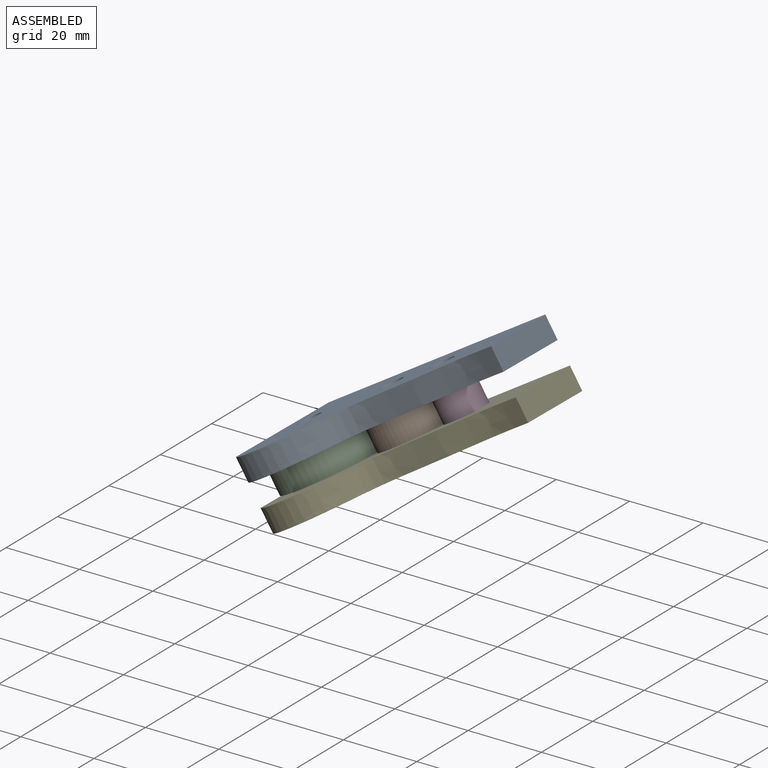
[diagram: assembled view]
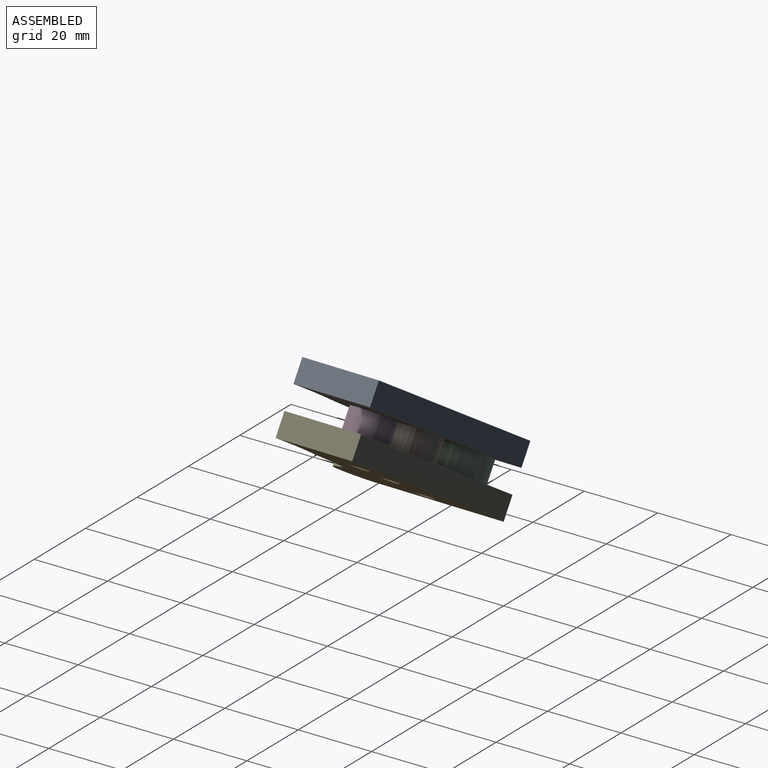
[diagram: assembled view, second angle]
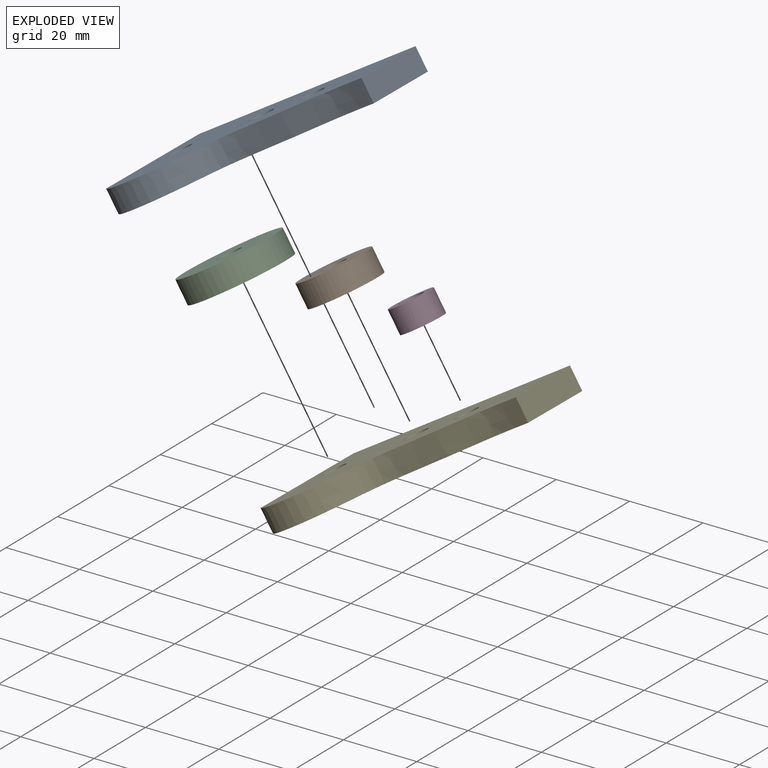
[diagram: exploded view]
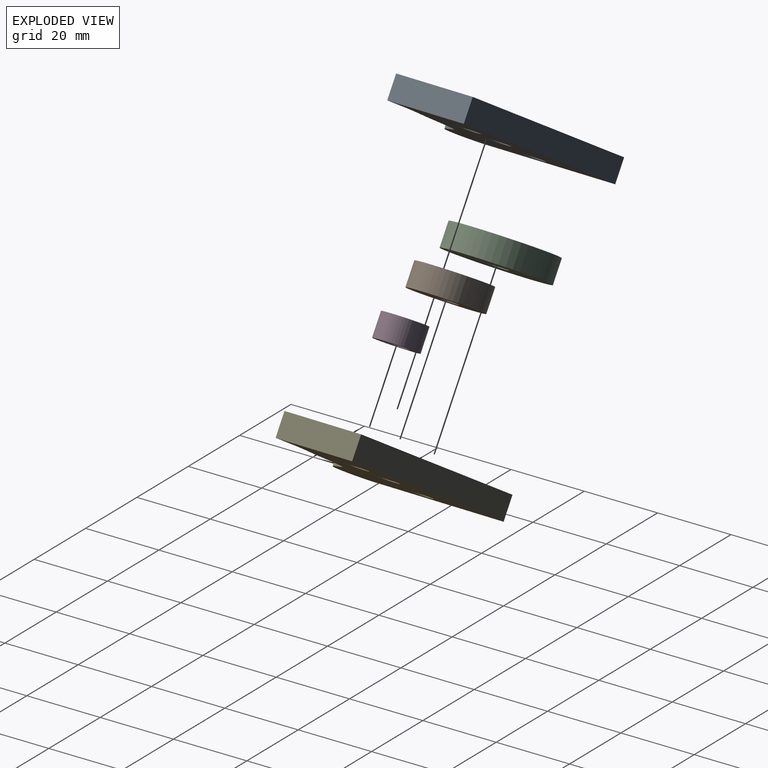
[diagram: exploded view, second angle]
ASSEMBLY  parts=5 mates=5
PART A: 9 faces, bbox 69.9x6.4x39.8 mm
  f0: extruded ~69.85x18.75mm, area 479.9mm2, adj f1,f3,f4,f5
  f1: plane 36.02x6.35mm, normal (-1,0,0), area 228.7mm2, adj f0,f2,f4,f5
  f2: plane 69.85x6.35mm, normal (0,0,-1), area 443.5mm2, adj f1,f3,f4,f5
  f3: plane 20.96x6.35mm, normal (1,0,0), area 133.1mm2, adj f0,f2,f4,f5
  f4: plane 69.85x39.75mm, normal (0,-1,0), area 1880.7mm2, adj f0,f1,f2,f3,f6,f7,f8
  f5: plane 69.85x39.75mm, normal (0,1,0), area 1880.7mm2, adj f0,f1,f2,f3,f6,f7,f8
  f6: cylinder r=3.17mm len=6.35mm, axis (0,-1,0), area 126.7mm2, adj f4,f5
  f7: cylinder r=3.17mm len=6.35mm, axis (0,-1,0), area 126.7mm2, adj f4,f5
  f8: cylinder r=3.17mm len=6.35mm, axis (0,-1,0), area 126.7mm2, adj f4,f5
PART B: 4 faces, bbox 19.1x6.4x19.1 mm
  f0: cylinder r=3.17mm len=6.35mm, axis (0,1,0), area 126.7mm2, adj f2,f3
  f1: cylinder r=9.53mm len=19.05mm, axis (0,1,0), area 380mm2, adj f2,f3
  f2: plane 19.05x19.05mm, normal (0,-1,0), area 253.4mm2, adj f0,f1
  f3: plane 19.05x19.05mm, normal (0,1,0), area 253.4mm2, adj f0,f1
PART C: 4 faces, bbox 26.7x6.4x26.7 mm
  f0: cylinder r=3.17mm len=6.35mm, axis (0,1,0), area 126.7mm2, adj f2,f3
  f1: cylinder r=13.33mm len=26.67mm, axis (0,1,0), area 532mm2, adj f2,f3
  f2: plane 26.67x26.67mm, normal (0,-1,0), area 527mm2, adj f0,f1
  f3: plane 26.67x26.67mm, normal (0,1,0), area 527mm2, adj f0,f1
PART D: 4 faces, bbox 11.4x6.4x11.4 mm
  f0: cylinder r=3.2mm len=6.4mm, axis (0,1,0), area 127.7mm2, adj f2,f3
  f1: cylinder r=5.71mm len=11.43mm, axis (0,1,0), area 228mm2, adj f2,f3
  f2: plane 11.43x11.43mm, normal (0,-1,0), area 70.4mm2, adj f0,f1
  f3: plane 11.43x11.43mm, normal (0,1,0), area 70.4mm2, adj f0,f1
PART E: same geometry as A
PLACE A rot(axis=(0.92,-0.27,0.27),94deg) t=(34.19,43.72,15.96)mm
PLACE B rot(axis=(0.84,0.01,0.54),89.5deg) t=(20.53,91.17,-0.68)mm
PLACE C rot(axis=(0.81,0.07,0.59),89.8deg) t=(28.54,118,4.15)mm
PLACE D rot(axis=(0.84,0,0.54),89.5deg) t=(2.67,64.44,-11.75)mm
PLACE E rot(axis=(0.92,-0.27,0.27),94deg) t=(40.99,43.62,5.24)mm
MATE revolute C.f0 <-> E.f7  axis (0.54,-0.01,-0.84) through (18.53,46.83,-9.05)mm
MATE revolute E.f8 <-> D.f0  axis (-0.54,0.01,0.84) through (51.1,52.03,11.57)mm
MATE revolute C.f0 <-> A.f7  axis (-0.54,0.01,0.84) through (15.13,46.88,-3.68)mm
MATE revolute B.f0 <-> A.f6  axis (-0.54,0.01,0.84) through (34.52,51.16,8.58)mm
MATE revolute B.f0 <-> E.f6  axis (-0.54,0.01,0.84) through (34.52,51.16,8.58)mm
